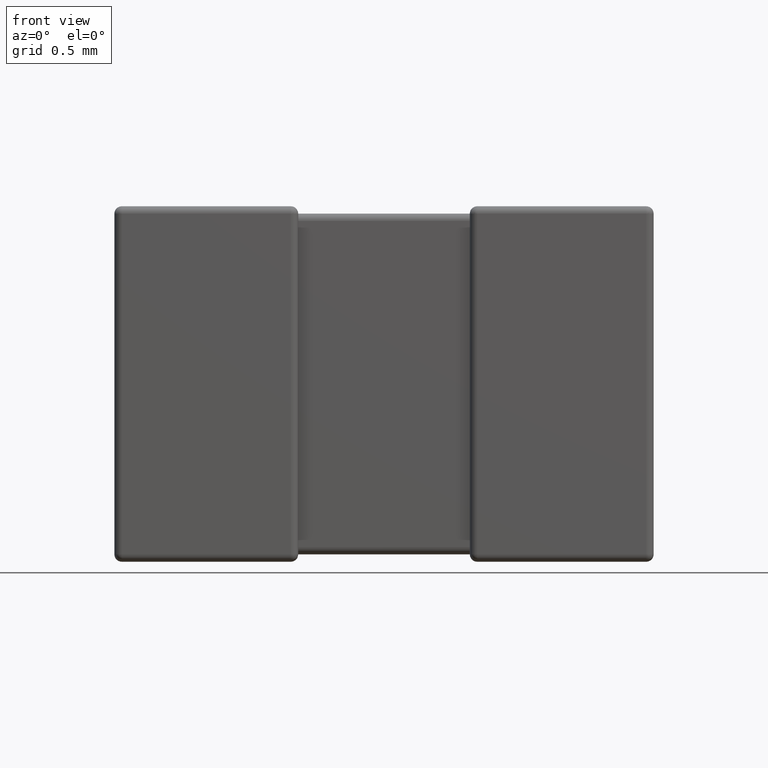
[diagram: clean part render]
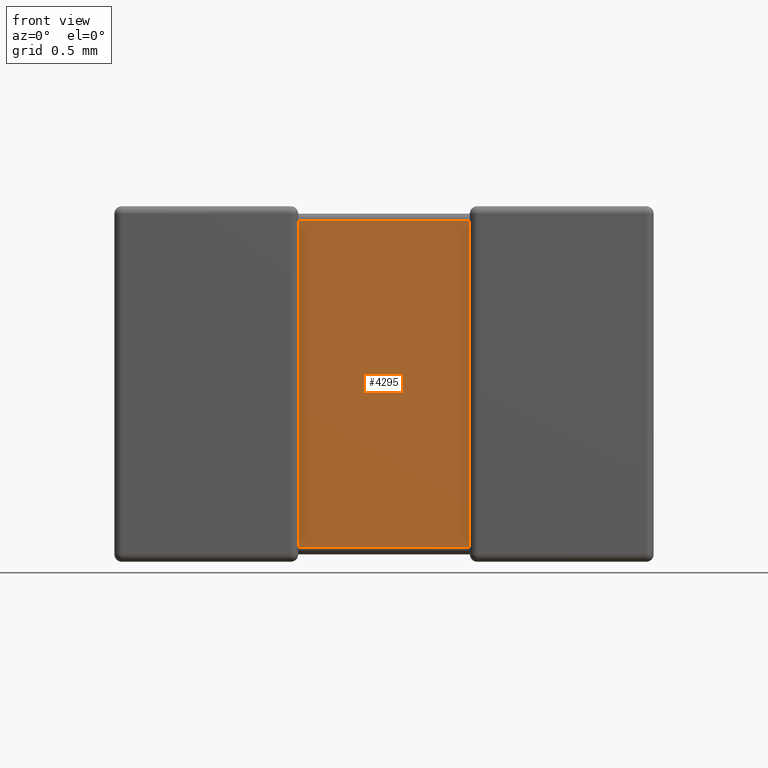
[diagram: same view with one face highlighted and labeled with its STEP entity id]
A machine part, front view. The second image highlights one B-rep face of the part: STEP entity #4295.
In plain terms, the highlighted planar face has unit normal (0, -1, 0).
Its self-contained STEP definition (entity closure, byte-faithful):
#406 = CARTESIAN_POINT ( 'NONE',  ( 1.450000000000000178, 0.03015999999999999584, -0.06031999999999999168 ) ) ;
#431 = VERTEX_POINT ( 'NONE', #3865 ) ;
#818 = VECTOR ( 'NONE', #993, 1000.000000000000000 ) ;
#842 = VECTOR ( 'NONE', #2234, 1000.000000000000000 ) ;
#993 = DIRECTION ( 'NONE',  ( 1.000000000000000000, 0.000000000000000000, -0.000000000000000000 ) ) ;
#995 = ORIENTED_EDGE ( 'NONE', *, *, #3495, .T. ) ;
#1201 = DIRECTION ( 'NONE',  ( -1.000000000000000000, -0.000000000000000000, -0.000000000000000000 ) ) ;
#1337 = VERTEX_POINT ( 'NONE', #406 ) ;
#1368 = VERTEX_POINT ( 'NONE', #4297 ) ;
#1412 = CARTESIAN_POINT ( 'NONE',  ( 1.450000000000000178, 0.03015999999999999584, -1.389679999999999804 ) ) ;
#1547 = LINE ( 'NONE', #1873, #2591 ) ;
#1553 = LINE ( 'NONE', #4371, #842 ) ;
#1873 = CARTESIAN_POINT ( 'NONE',  ( 0.7500000000000000000, 0.03015999999999999584, -0.06031999999999999168 ) ) ;
#1891 = DIRECTION ( 'NONE',  ( 0.000000000000000000, -1.000000000000000000, 0.000000000000000000 ) ) ;
#1963 = DIRECTION ( 'NONE',  ( 0.000000000000000000, -0.000000000000000000, -1.000000000000000000 ) ) ;
#2234 = DIRECTION ( 'NONE',  ( -0.000000000000000000, -0.000000000000000000, 1.000000000000000000 ) ) ;
#2271 = CARTESIAN_POINT ( 'NONE',  ( 0.7500000000000000000, 0.03015999999999999584, -1.449999999999999956 ) ) ;
#2461 = ORIENTED_EDGE ( 'NONE', *, *, #4303, .T. ) ;
#2591 = VECTOR ( 'NONE', #1201, 1000.000000000000000 ) ;
#2645 = FACE_OUTER_BOUND ( 'NONE', #4306, .T. ) ;
#2801 = LINE ( 'NONE', #1412, #818 ) ;
#2811 = VECTOR ( 'NONE', #4290, 1000.000000000000000 ) ;
#2829 = EDGE_CURVE ( 'NONE', #431, #1337, #3288, .T. ) ;
#2834 = EDGE_CURVE ( 'NONE', #3393, #1368, #1553, .T. ) ;
#2893 = CARTESIAN_POINT ( 'NONE',  ( 0.7500000000000000000, 0.03015999999999999584, -1.389679999999999804 ) ) ;
#2922 = PLANE ( 'NONE',  #4495 ) ;
#3288 = LINE ( 'NONE', #4329, #2811 ) ;
#3393 = VERTEX_POINT ( 'NONE', #2893 ) ;
#3495 = EDGE_CURVE ( 'NONE', #3393, #431, #2801, .T. ) ;
#3865 = CARTESIAN_POINT ( 'NONE',  ( 1.450000000000000178, 0.03015999999999999584, -1.389679999999999804 ) ) ;
#3913 = ORIENTED_EDGE ( 'NONE', *, *, #2829, .T. ) ;
#4290 = DIRECTION ( 'NONE',  ( -0.000000000000000000, -0.000000000000000000, 1.000000000000000000 ) ) ;
#4295 = ADVANCED_FACE ( 'NONE', ( #2645 ), #2922, .T. ) ;
#4297 = CARTESIAN_POINT ( 'NONE',  ( 0.7500000000000000000, 0.03015999999999999584, -0.06031999999999999168 ) ) ;
#4303 = EDGE_CURVE ( 'NONE', #1337, #1368, #1547, .T. ) ;
#4306 = EDGE_LOOP ( 'NONE', ( #4361, #995, #3913, #2461 ) ) ;
#4329 = CARTESIAN_POINT ( 'NONE',  ( 1.450000000000000178, 0.03015999999999999584, -1.449999999999999956 ) ) ;
#4361 = ORIENTED_EDGE ( 'NONE', *, *, #2834, .F. ) ;
#4371 = CARTESIAN_POINT ( 'NONE',  ( 0.7500000000000000000, 0.03015999999999999584, -1.449999999999999956 ) ) ;
#4495 = AXIS2_PLACEMENT_3D ( 'NONE', #2271, #1891, #1963 ) ;